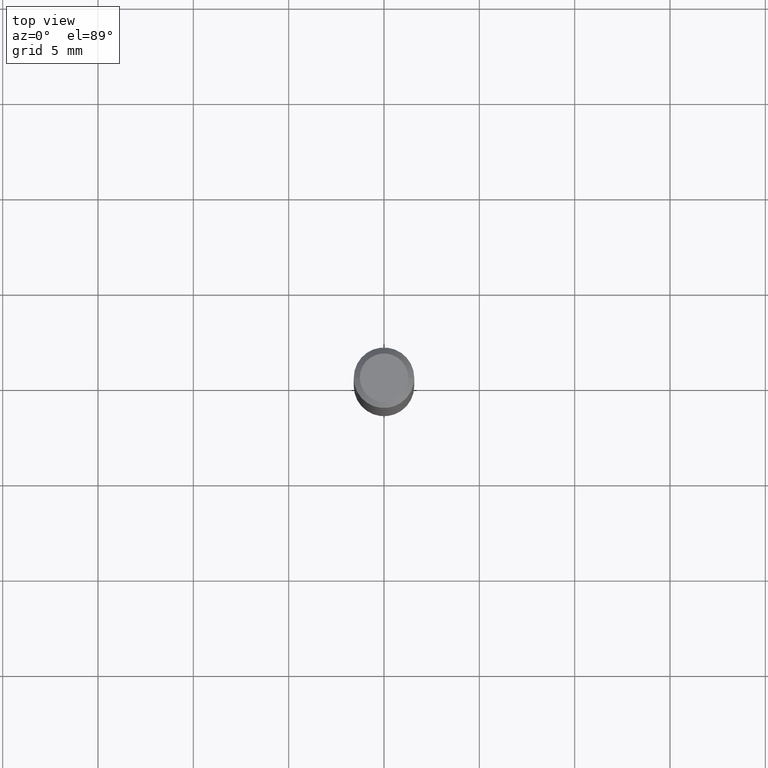
[diagram: clean part render]
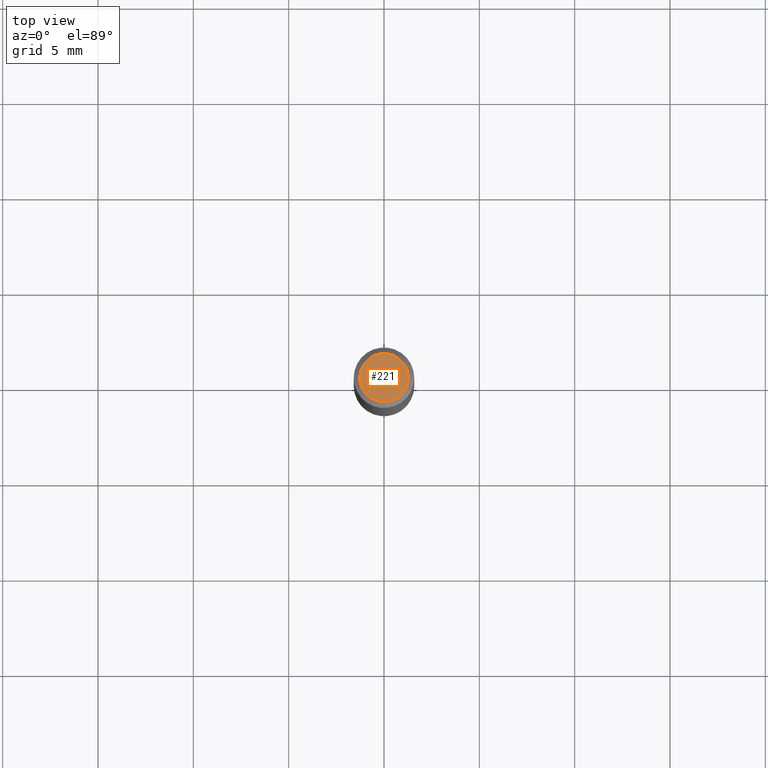
[diagram: same view with one face highlighted and labeled with its STEP entity id]
A machine part, top view. The second image highlights one B-rep face of the part: STEP entity #221.
In plain terms, the highlighted planar face has unit normal (0, -0, -1).
Its self-contained STEP definition (entity closure, byte-faithful):
#40 = DIRECTION ( 'NONE',  ( 1.000000000000000000, -6.982962677686265922E-15, 4.875957971899673662E-29 ) ) ;
#54 = DIRECTION ( 'NONE',  ( 2.438088387897960049E-29, -3.491481338843145188E-15, -1.000000000000000000 ) ) ;
#59 = PLANE ( 'NONE',  #458 ) ;
#62 = DIRECTION ( 'NONE',  ( -1.000000000000000000, 6.982962677686265922E-15, -4.876176775795935793E-29 ) ) ;
#72 = CIRCLE ( 'NONE', #375, 0.04999999999999999584 ) ;
#93 = CARTESIAN_POINT ( 'NONE',  ( 0.04999999999999999584, -4.077247707424184212E-16, -1.592040838888913461E-18 ) ) ;
#109 = AXIS2_PLACEMENT_3D ( 'NONE', #118, #268, #40 ) ;
#118 = CARTESIAN_POINT ( 'NONE',  ( 3.893286209682126177E-47, -5.558580879666067980E-33, -1.592040838891559689E-18 ) ) ;
#134 = CARTESIAN_POINT ( 'NONE',  ( 1.946643104841063088E-47, -2.779290439833033990E-33, -7.960204194457798443E-19 ) ) ;
#140 = ORIENTED_EDGE ( 'NONE', *, *, #478, .T. ) ;
#176 = EDGE_LOOP ( 'NONE', ( #334, #140 ) ) ;
#187 = VERTEX_POINT ( 'NONE', #93 ) ;
#202 = DIRECTION ( 'NONE',  ( -2.445468806185136597E-29, 3.491481338843145583E-15, 1.000000000000000000 ) ) ;
#217 = VERTEX_POINT ( 'NONE', #276 ) ;
#221 = ADVANCED_FACE ( 'NONE', ( #247 ), #59, .F. ) ;
#247 = FACE_OUTER_BOUND ( 'NONE', #176, .T. ) ;
#268 = DIRECTION ( 'NONE',  ( -2.445468806185136597E-29, 3.491481338843145583E-15, 1.000000000000000000 ) ) ;
#271 = DIRECTION ( 'NONE',  ( 1.000000000000000000, -6.982962677686265922E-15, 4.875957971899673662E-29 ) ) ;
#276 = CARTESIAN_POINT ( 'NONE',  ( -0.04999999999999999584, 3.709698922520826725E-16, -1.592040838894077649E-18 ) ) ;
#334 = ORIENTED_EDGE ( 'NONE', *, *, #466, .T. ) ;
#349 = CIRCLE ( 'NONE', #109, 0.04999999999999999584 ) ;
#375 = AXIS2_PLACEMENT_3D ( 'NONE', #376, #202, #271 ) ;
#376 = CARTESIAN_POINT ( 'NONE',  ( 3.893286209682126177E-47, -5.558580879666067980E-33, -1.592040838891559689E-18 ) ) ;
#458 = AXIS2_PLACEMENT_3D ( 'NONE', #134, #54, #62 ) ;
#466 = EDGE_CURVE ( 'NONE', #217, #187, #349, .T. ) ;
#478 = EDGE_CURVE ( 'NONE', #187, #217, #72, .T. ) ;